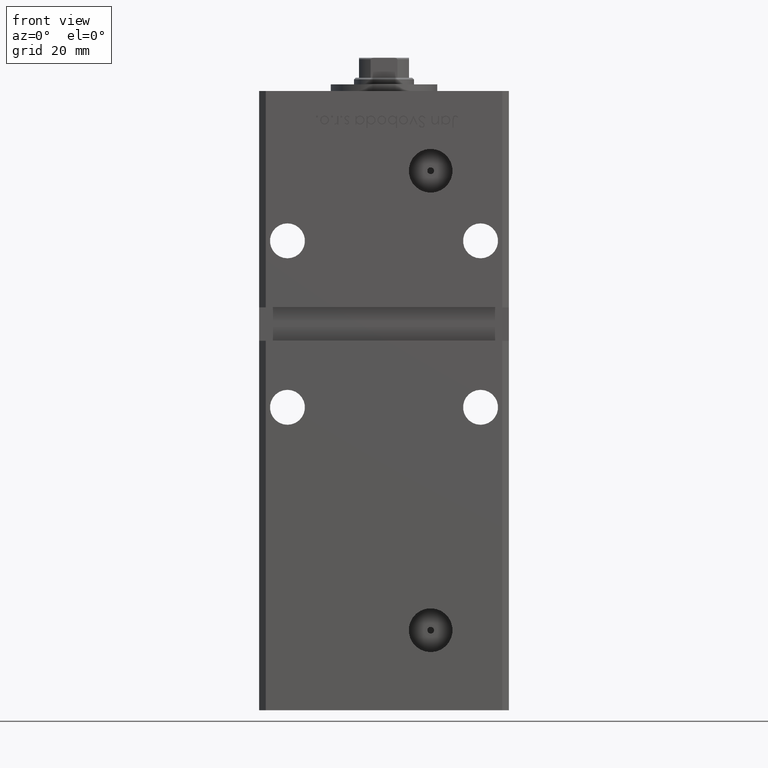
[diagram: clean part render]
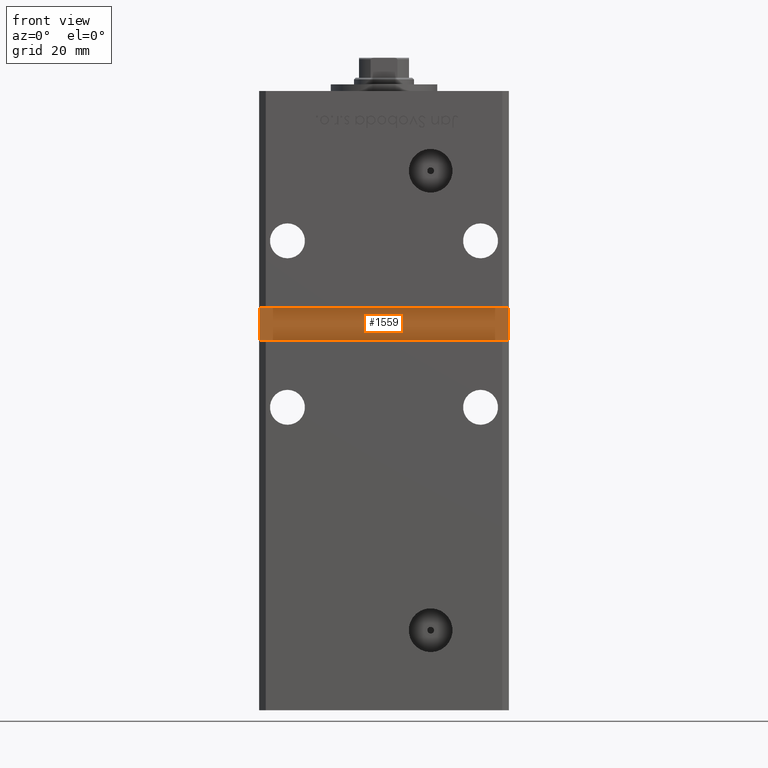
[diagram: same view with one face highlighted and labeled with its STEP entity id]
A machine part, front view. The second image highlights one B-rep face of the part: STEP entity #1559.
In plain terms, the highlighted planar face has unit normal (0, -1, 0).
Its self-contained STEP definition (entity closure, byte-faithful):
#1559 = ADVANCED_FACE ( 'NONE', ( #45399 ), #17465, .T. ) ;
#1843 = VERTEX_POINT ( 'NONE', #20630 ) ;
#2713 = VECTOR ( 'NONE', #48302, 1000.000000000000000 ) ;
#3055 = DIRECTION ( 'NONE',  ( -0.000000000000000000, -0.000000000000000000, 1.000000000000000000 ) ) ;
#5121 = CARTESIAN_POINT ( 'NONE',  ( -37.49999999999999289, -27.50000000000000000, 106.0000000000000000 ) ) ;
#7864 = LINE ( 'NONE', #27544, #18080 ) ;
#8825 = EDGE_CURVE ( 'NONE', #36070, #41055, #15772, .T. ) ;
#11527 = EDGE_CURVE ( 'NONE', #41055, #1843, #37931, .T. ) ;
#11725 = CARTESIAN_POINT ( 'NONE',  ( -37.49999999999999289, -27.50000000000000000, 106.0000000000000000 ) ) ;
#12890 = CARTESIAN_POINT ( 'NONE',  ( 0.000000000000000000, -27.50000000000000000, 0.000000000000000000 ) ) ;
#12939 = EDGE_CURVE ( 'NONE', #1843, #48939, #43510, .T. ) ;
#14060 = ORIENTED_EDGE ( 'NONE', *, *, #8825, .T. ) ;
#15772 = LINE ( 'NONE', #11725, #2713 ) ;
#17465 = PLANE ( 'NONE',  #31709 ) ;
#17535 = DIRECTION ( 'NONE',  ( 1.000000000000000000, 0.000000000000000000, 0.000000000000000000 ) ) ;
#18080 = VECTOR ( 'NONE', #3055, 1000.000000000000000 ) ;
#20630 = CARTESIAN_POINT ( 'NONE',  ( -37.49999999999999289, -27.50000000000000000, 96.00000000000000000 ) ) ;
#21926 = ORIENTED_EDGE ( 'NONE', *, *, #11527, .T. ) ;
#24280 = CARTESIAN_POINT ( 'NONE',  ( 37.49999999999999289, -27.50000000000000000, 106.0000000000000000 ) ) ;
#24798 = CARTESIAN_POINT ( 'NONE',  ( 37.49999999999999289, -27.50000000000000000, 96.00000000000000000 ) ) ;
#25128 = VECTOR ( 'NONE', #38455, 1000.000000000000000 ) ;
#25793 = DIRECTION ( 'NONE',  ( 0.000000000000000000, -1.000000000000000000, 0.000000000000000000 ) ) ;
#27544 = CARTESIAN_POINT ( 'NONE',  ( 37.49999999999999289, -27.50000000000000000, 106.0000000000000000 ) ) ;
#29568 = ORIENTED_EDGE ( 'NONE', *, *, #47713, .T. ) ;
#31709 = AXIS2_PLACEMENT_3D ( 'NONE', #12890, #25793, #50518 ) ;
#32040 = VECTOR ( 'NONE', #17535, 1000.000000000000000 ) ;
#35462 = EDGE_LOOP ( 'NONE', ( #29568, #14060, #21926, #44416 ) ) ;
#36070 = VERTEX_POINT ( 'NONE', #24280 ) ;
#37931 = LINE ( 'NONE', #5121, #25128 ) ;
#38455 = DIRECTION ( 'NONE',  ( 0.000000000000000000, 0.000000000000000000, -1.000000000000000000 ) ) ;
#41055 = VERTEX_POINT ( 'NONE', #47760 ) ;
#43510 = LINE ( 'NONE', #50592, #32040 ) ;
#44416 = ORIENTED_EDGE ( 'NONE', *, *, #12939, .T. ) ;
#45399 = FACE_OUTER_BOUND ( 'NONE', #35462, .T. ) ;
#47713 = EDGE_CURVE ( 'NONE', #48939, #36070, #7864, .T. ) ;
#47760 = CARTESIAN_POINT ( 'NONE',  ( -37.49999999999999289, -27.50000000000000000, 106.0000000000000000 ) ) ;
#48302 = DIRECTION ( 'NONE',  ( -1.000000000000000000, -0.000000000000000000, -0.000000000000000000 ) ) ;
#48939 = VERTEX_POINT ( 'NONE', #24798 ) ;
#50518 = DIRECTION ( 'NONE',  ( 0.000000000000000000, -0.000000000000000000, -1.000000000000000000 ) ) ;
#50592 = CARTESIAN_POINT ( 'NONE',  ( -37.49999999999999289, -27.50000000000000000, 96.00000000000000000 ) ) ;